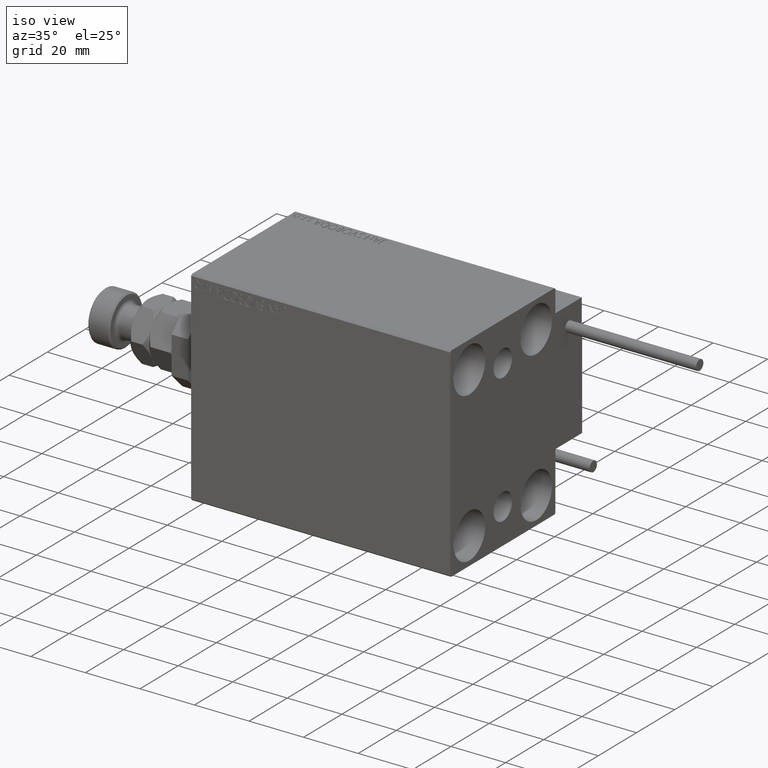
[diagram: clean part render]
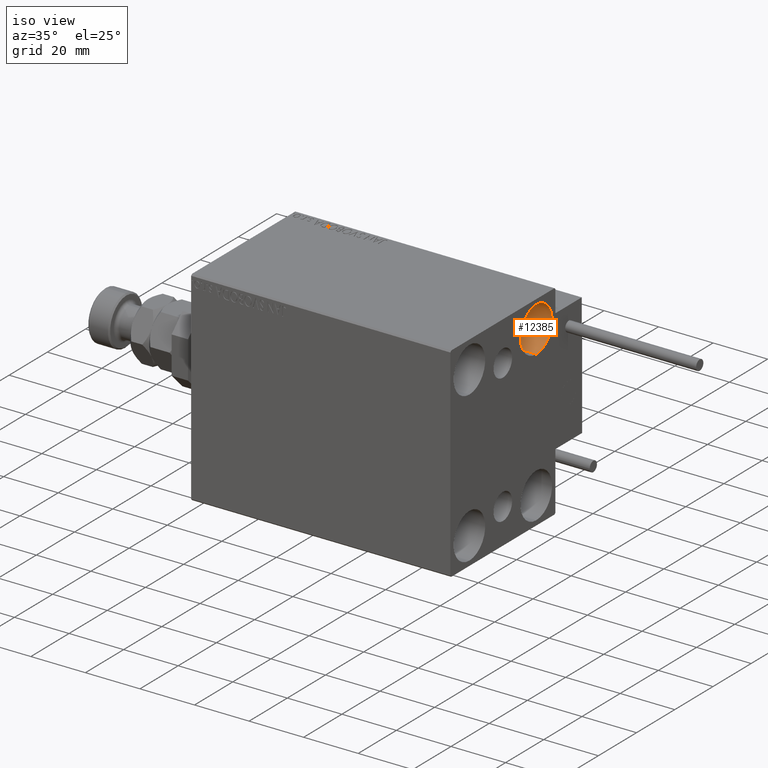
[diagram: same view with one face highlighted and labeled with its STEP entity id]
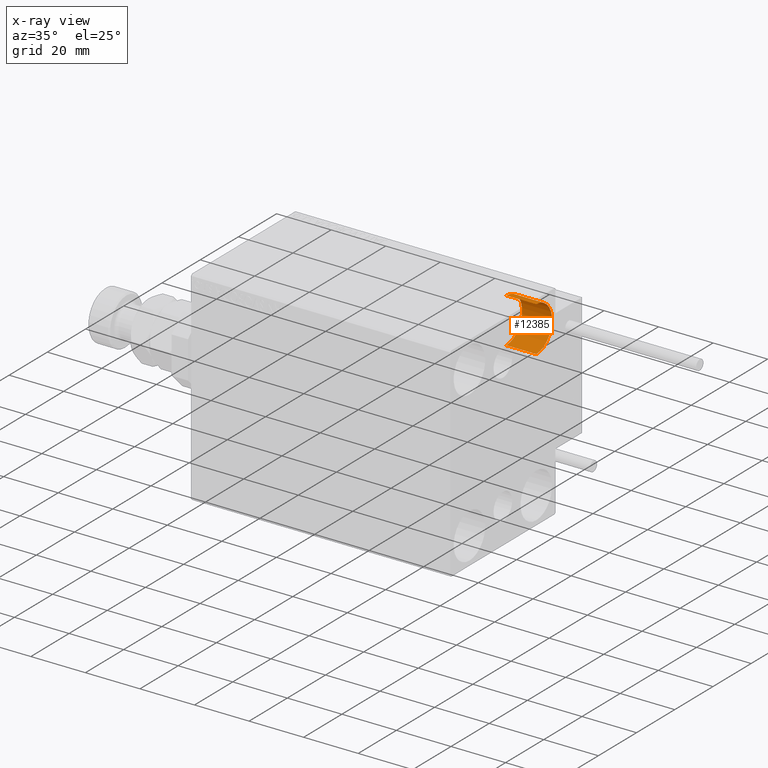
[diagram: x-ray of the same camera — body ghosted, the highlighted face saturated]
A machine part, iso view. The second image highlights one B-rep face of the part: STEP entity #12385.
The next image is the same camera in x-ray: the body ghosted, the highlighted face saturated — about 0% of this face is hidden behind the body in this view.
In plain terms, the highlighted cylindrical surface (edge-blend (fillet) strip) has radius 8.25 mm, axis along (1, 0, 0).
Its self-contained STEP definition (entity closure, byte-faithful):
#4750 = DIRECTION ( 'NONE',  ( 1.000000000000000000, -0.000000000000000000, -0.000000000000000000 ) ) ;
#7664 = LINE ( 'NONE', #38723, #21260 ) ;
#9408 = CARTESIAN_POINT ( 'NONE',  ( 95.00000000000000000, 17.50000000000000355, 35.74999999999999289 ) ) ;
#9508 = DIRECTION ( 'NONE',  ( -1.000000000000000000, -0.000000000000000000, -0.000000000000000000 ) ) ;
#11164 = VERTEX_POINT ( 'NONE', #9408 ) ;
#12112 = CIRCLE ( 'NONE', #27908, 8.249999999999992895 ) ;
#12385 = ADVANCED_FACE ( 'NONE', ( #30798 ), #51421, .F. ) ;
#12810 = CARTESIAN_POINT ( 'NONE',  ( 84.00000000000000000, 17.50000000000000355, 35.74999999999999289 ) ) ;
#13106 = VERTEX_POINT ( 'NONE', #15476 ) ;
#13145 = CARTESIAN_POINT ( 'NONE',  ( 95.00000000000000000, 17.50000000000000355, 19.25000000000000000 ) ) ;
#15169 = AXIS2_PLACEMENT_3D ( 'NONE', #27638, #46742, #39669 ) ;
#15476 = CARTESIAN_POINT ( 'NONE',  ( 84.00000000000000000, 17.50000000000000355, 19.25000000000000000 ) ) ;
#19480 = EDGE_CURVE ( 'NONE', #11164, #24957, #44632, .T. ) ;
#20346 = ORIENTED_EDGE ( 'NONE', *, *, #22686, .T. ) ;
#21260 = VECTOR ( 'NONE', #38467, 1000.000000000000000 ) ;
#22686 = EDGE_CURVE ( 'NONE', #13106, #24957, #7664, .T. ) ;
#23417 = DIRECTION ( 'NONE',  ( -1.000000000000000000, -0.000000000000000000, -0.000000000000000000 ) ) ;
#24957 = VERTEX_POINT ( 'NONE', #13145 ) ;
#27583 = CARTESIAN_POINT ( 'NONE',  ( 95.00000000000000000, 17.50000000000000355, 27.49999999999999645 ) ) ;
#27638 = CARTESIAN_POINT ( 'NONE',  ( 84.00000000000000000, 17.50000000000000355, 27.49999999999999645 ) ) ;
#27908 = AXIS2_PLACEMENT_3D ( 'NONE', #49676, #9508, #41323 ) ;
#30798 = FACE_OUTER_BOUND ( 'NONE', #45849, .T. ) ;
#33443 = VECTOR ( 'NONE', #4750, 1000.000000000000000 ) ;
#33894 = EDGE_CURVE ( 'NONE', #41388, #11164, #48047, .T. ) ;
#33995 = ORIENTED_EDGE ( 'NONE', *, *, #33894, .F. ) ;
#35071 = ORIENTED_EDGE ( 'NONE', *, *, #19480, .F. ) ;
#35894 = EDGE_CURVE ( 'NONE', #41388, #13106, #12112, .T. ) ;
#37947 = AXIS2_PLACEMENT_3D ( 'NONE', #27583, #23417, #47715 ) ;
#38467 = DIRECTION ( 'NONE',  ( 1.000000000000000000, -0.000000000000000000, -0.000000000000000000 ) ) ;
#38723 = CARTESIAN_POINT ( 'NONE',  ( 84.00000000000000000, 17.50000000000000355, 19.25000000000000000 ) ) ;
#39669 = DIRECTION ( 'NONE',  ( 0.000000000000000000, 0.000000000000000000, -1.000000000000000000 ) ) ;
#40766 = CARTESIAN_POINT ( 'NONE',  ( 84.00000000000000000, 17.50000000000000355, 35.74999999999999289 ) ) ;
#41323 = DIRECTION ( 'NONE',  ( 0.000000000000000000, 0.000000000000000000, 1.000000000000000000 ) ) ;
#41388 = VERTEX_POINT ( 'NONE', #40766 ) ;
#44632 = CIRCLE ( 'NONE', #37947, 8.249999999999992895 ) ;
#45849 = EDGE_LOOP ( 'NONE', ( #33995, #49248, #20346, #35071 ) ) ;
#46742 = DIRECTION ( 'NONE',  ( 1.000000000000000000, -0.000000000000000000, -0.000000000000000000 ) ) ;
#47715 = DIRECTION ( 'NONE',  ( 0.000000000000000000, 0.000000000000000000, 1.000000000000000000 ) ) ;
#48047 = LINE ( 'NONE', #12810, #33443 ) ;
#49248 = ORIENTED_EDGE ( 'NONE', *, *, #35894, .T. ) ;
#49676 = CARTESIAN_POINT ( 'NONE',  ( 84.00000000000000000, 17.50000000000000355, 27.49999999999999645 ) ) ;
#51421 = CYLINDRICAL_SURFACE ( 'NONE', #15169, 8.249999999999996447 ) ;